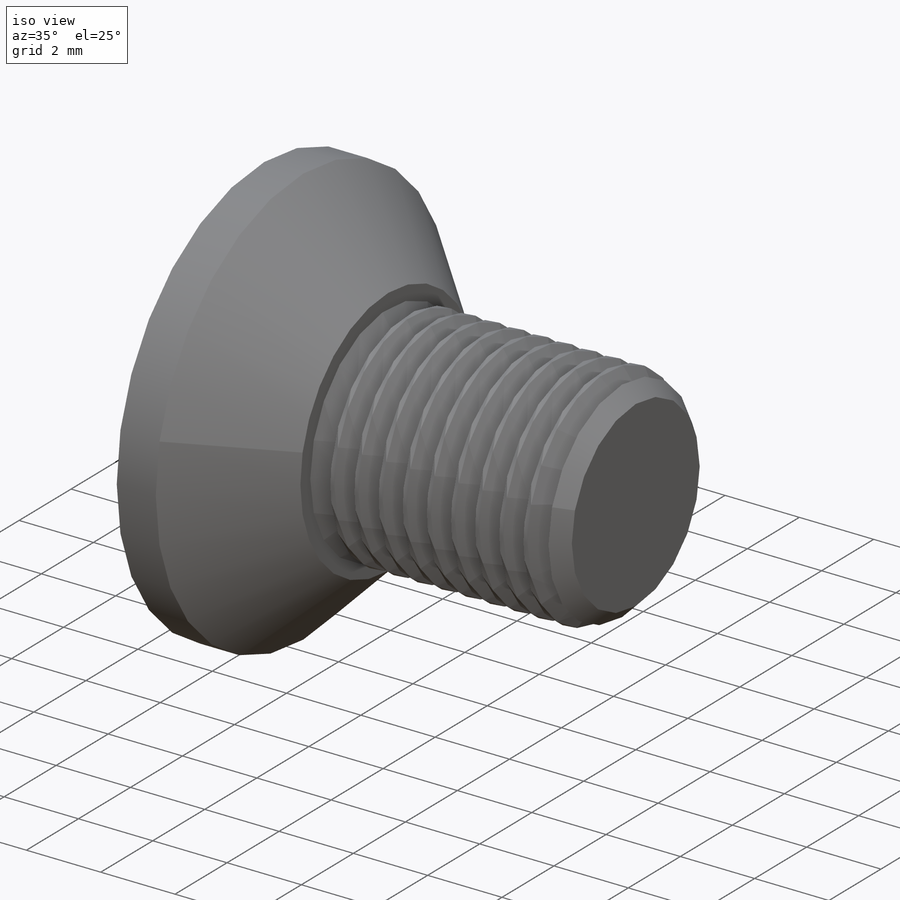
[diagram: iso view]
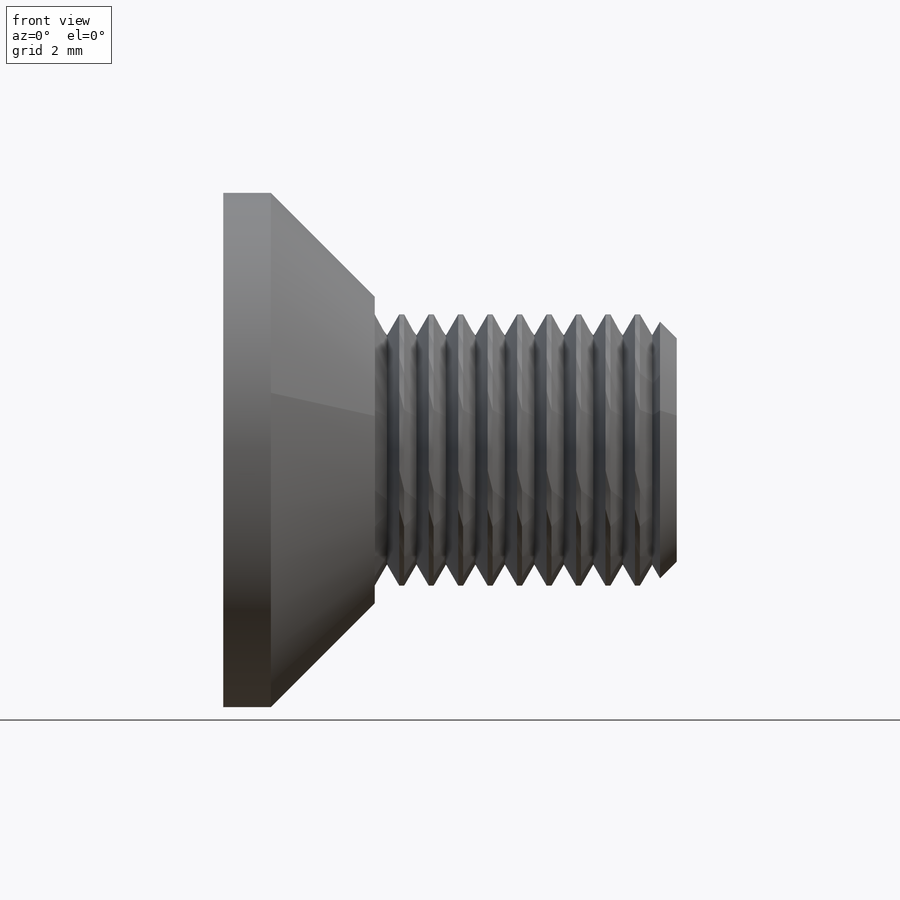
[diagram: front view]
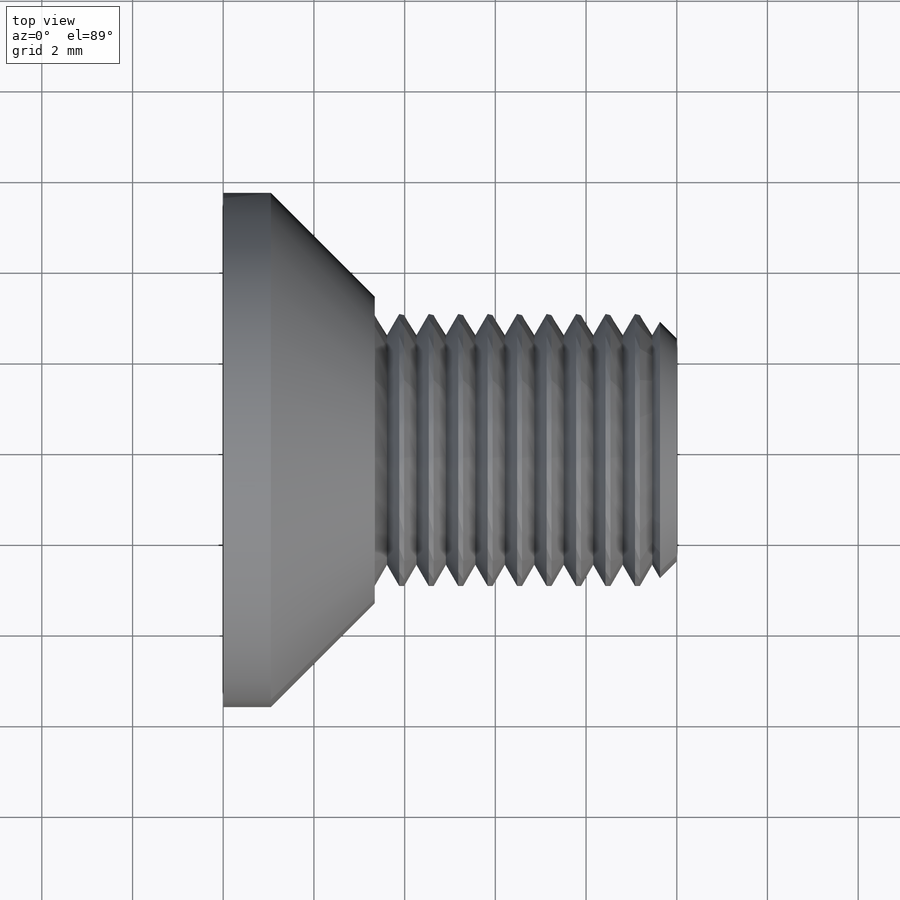
[diagram: top view]
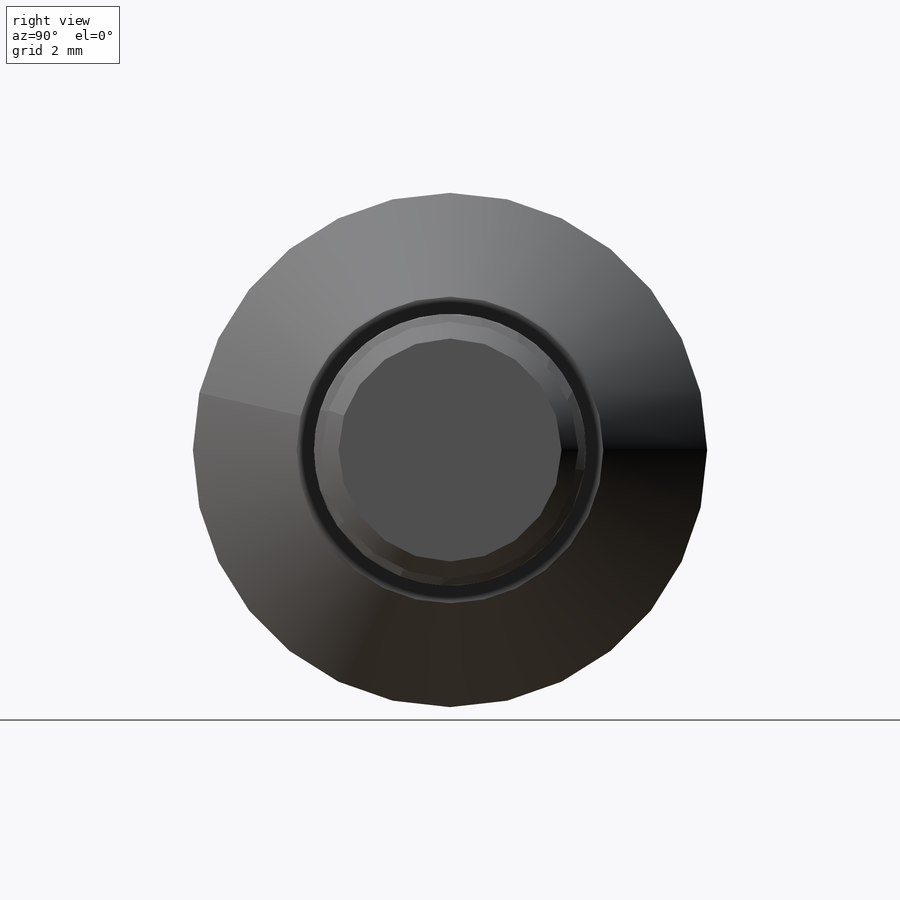
[diagram: right view]
SOLIDWORKS PART (.sldprt)
format: sldprt  version: not decoded by parser v0  size: 286,208 bytes
history: native  units: mm
features: sketch x5, cut_revolve x3, material x1, revolve x1, thread x1, cut_extrude x1, fillet x1, chamfer x1, pattern_linear x1 (+15 scaffold rows collapsed; 1 parser-record rows omitted)
feature tree (31):
  parser-record x1  (decoder bookkeeping rows leaked as tree rows — omitted from the tree; the rows remain in map.json)
  scaffold x15  (default folders/planes/origin — collapsed)
  material  "材质 <未指定>"
  sketch  "Sketch1"  dims[c1.l=10.0mm c1.dk=6.72mm c1.k=3.72mm c1.d=6.0mm c1.D1=~1.697056mm c2.D1=45.0deg c3.D1=~1.697056mm c4.D1=135.0deg c5.D1=10.0mm c6.D1=45.0deg]
  revolve  "Base"  [1 undecoded]
  thread  "ThreadCosmetic1"  Diameter=6.2mm b=6.2mm  [1 undecoded]
  sketch  "Sketch2"  dims[s=4.0mm]
  cut_extrude  "HexagonSocket"  Depth=2.2mm t=2.2mm
  sketch  "Sketch3"  dims[c1.D1=~1.136431mm c2.D1=120.0deg]
  cut_revolve  "Cut-Revolve1"  Angle=360deg
  fillet  "HeadFillet"  Radius=0.25mm r=0.25mm
  chamfer  "Chamfer"  Distance=0.5415mm Angle=45deg
  sketch  "Sketch4"  dims[c1.dk=11.34mm c1.D2=2.0mm c1.D3=5.0mm c1.D4=5.0mm c1.D1=2.0mm c2.D2=2.0mm c2.D1=~14.547153mm]
  cut_revolve  "Cut-Revolve2"  Angle=360deg
  sketch  "Sketch5"  dims[D1=6.0mm D2=0.5415mm]
  cut_revolve  "Cut-Revolve10"  Angle=360deg
  pattern_linear  "LPattern10"  Count1=10 Count2=1 Spacing1=0.6498mm Spacing2=50mm ConfigurationName=0mm CopiedFlag=1 PartNumberID=0mm
decode coverage: 13 of 14 modeling features carry decoded parameters
note: ~ marks probable driven/reference dimensions
note: 2 parameter values undecoded
note: suppression state not decoded; provenance and decode notes live in map.json
